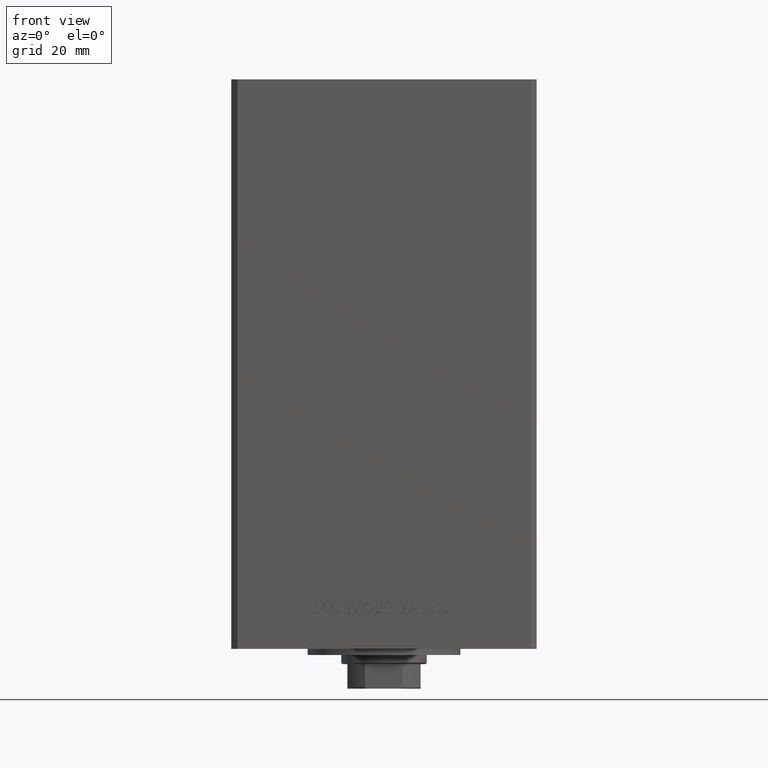
[diagram: clean part render]
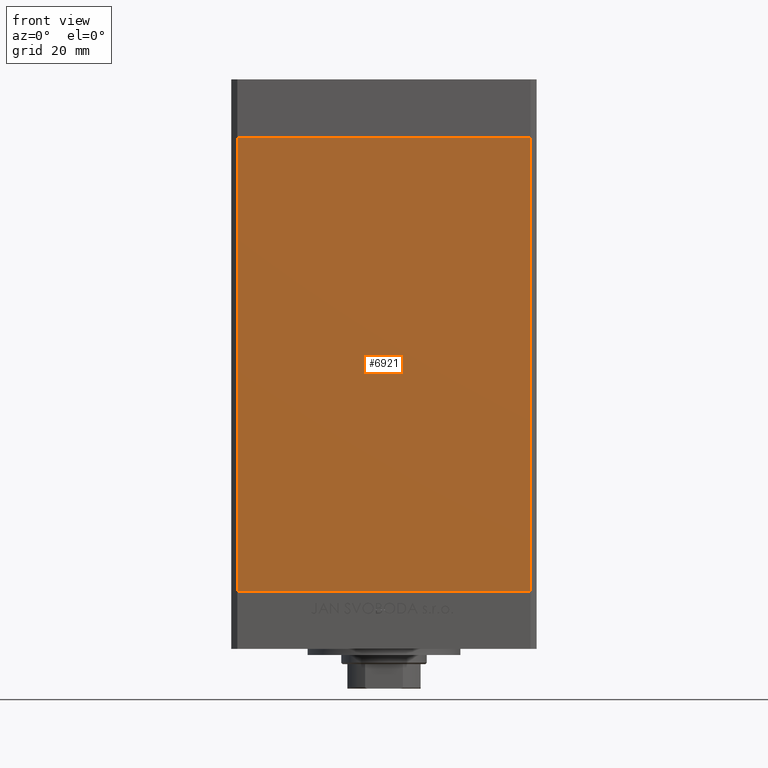
[diagram: same view with one face highlighted and labeled with its STEP entity id]
A machine part, front view. The second image highlights one B-rep face of the part: STEP entity #6921.
In plain terms, the highlighted planar face has unit normal (0, 1, 0).
Its self-contained STEP definition (entity closure, byte-faithful):
#485 = DIRECTION ( 'NONE',  ( 0.000000000000000000, 1.000000000000000000, 0.000000000000000000 ) ) ;
#3194 = DIRECTION ( 'NONE',  ( -0.000000000000000000, -0.000000000000000000, -1.000000000000000000 ) ) ;
#3636 = ORIENTED_EDGE ( 'NONE', *, *, #16454, .F. ) ;
#4670 = CARTESIAN_POINT ( 'NONE',  ( -47.99999999999998579, -43.50000000000000000, 148.5000000000000000 ) ) ;
#5100 = CARTESIAN_POINT ( 'NONE',  ( 47.99999999999998579, -43.50000000000000000, 0.000000000000000000 ) ) ;
#5435 = ORIENTED_EDGE ( 'NONE', *, *, #30244, .T. ) ;
#5564 = VERTEX_POINT ( 'NONE', #5100 ) ;
#6921 = ADVANCED_FACE ( 'NONE', ( #46390 ), #27325, .F. ) ;
#7474 = VECTOR ( 'NONE', #43054, 1000.000000000000000 ) ;
#8243 = DIRECTION ( 'NONE',  ( 0.000000000000000000, -0.000000000000000000, 1.000000000000000000 ) ) ;
#8512 = DIRECTION ( 'NONE',  ( 1.000000000000000000, 0.000000000000000000, 0.000000000000000000 ) ) ;
#11053 = VERTEX_POINT ( 'NONE', #35960 ) ;
#12015 = CARTESIAN_POINT ( 'NONE',  ( -47.99999999999998579, -43.50000000000000000, 148.5000000000000000 ) ) ;
#13579 = VECTOR ( 'NONE', #3194, 1000.000000000000000 ) ;
#16454 = EDGE_CURVE ( 'NONE', #11053, #32227, #35123, .T. ) ;
#17826 = EDGE_CURVE ( 'NONE', #32227, #5564, #33067, .T. ) ;
#24719 = VECTOR ( 'NONE', #8512, 1000.000000000000000 ) ;
#25175 = DIRECTION ( 'NONE',  ( 1.000000000000000000, 0.000000000000000000, 0.000000000000000000 ) ) ;
#27325 = PLANE ( 'NONE',  #36278 ) ;
#30244 = EDGE_CURVE ( 'NONE', #45962, #5564, #36191, .T. ) ;
#30712 = ORIENTED_EDGE ( 'NONE', *, *, #33183, .T. ) ;
#32227 = VERTEX_POINT ( 'NONE', #36819 ) ;
#33067 = LINE ( 'NONE', #44850, #13579 ) ;
#33183 = EDGE_CURVE ( 'NONE', #11053, #45962, #39046, .T. ) ;
#35123 = LINE ( 'NONE', #46920, #24719 ) ;
#35960 = CARTESIAN_POINT ( 'NONE',  ( -47.99999999999998579, -43.50000000000000000, 148.5000000000000000 ) ) ;
#36191 = LINE ( 'NONE', #36450, #38612 ) ;
#36278 = AXIS2_PLACEMENT_3D ( 'NONE', #12015, #485, #8243 ) ;
#36450 = CARTESIAN_POINT ( 'NONE',  ( -47.99999999999998579, -43.50000000000000000, 0.000000000000000000 ) ) ;
#36819 = CARTESIAN_POINT ( 'NONE',  ( 47.99999999999998579, -43.50000000000000000, 148.5000000000000000 ) ) ;
#38612 = VECTOR ( 'NONE', #25175, 1000.000000000000000 ) ;
#39046 = LINE ( 'NONE', #4670, #7474 ) ;
#42273 = ORIENTED_EDGE ( 'NONE', *, *, #17826, .F. ) ;
#43009 = EDGE_LOOP ( 'NONE', ( #5435, #42273, #3636, #30712 ) ) ;
#43054 = DIRECTION ( 'NONE',  ( -0.000000000000000000, -0.000000000000000000, -1.000000000000000000 ) ) ;
#43093 = CARTESIAN_POINT ( 'NONE',  ( -47.99999999999998579, -43.50000000000000000, 0.000000000000000000 ) ) ;
#44850 = CARTESIAN_POINT ( 'NONE',  ( 47.99999999999998579, -43.50000000000000000, 148.5000000000000000 ) ) ;
#45962 = VERTEX_POINT ( 'NONE', #43093 ) ;
#46390 = FACE_OUTER_BOUND ( 'NONE', #43009, .T. ) ;
#46920 = CARTESIAN_POINT ( 'NONE',  ( -47.99999999999998579, -43.50000000000000000, 148.5000000000000000 ) ) ;